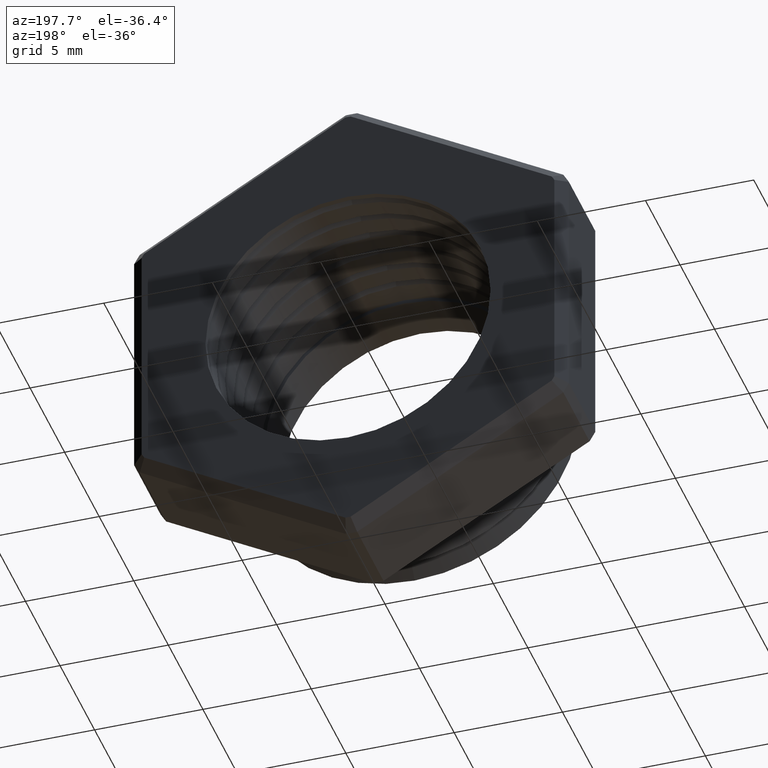
[diagram: clean part render]
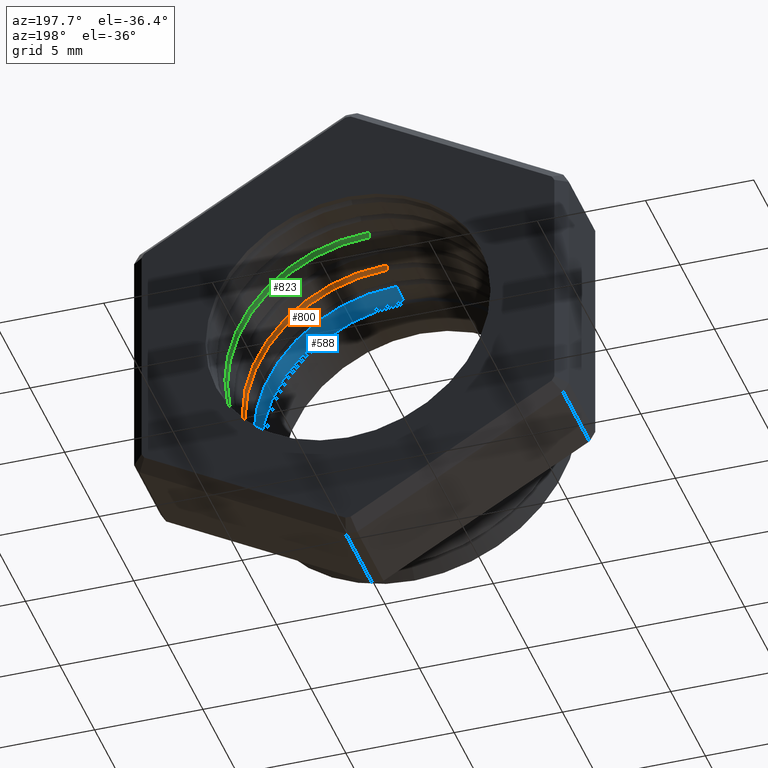
[diagram: same view with three faces highlighted in distinct colors, each labeled with its STEP entity id]
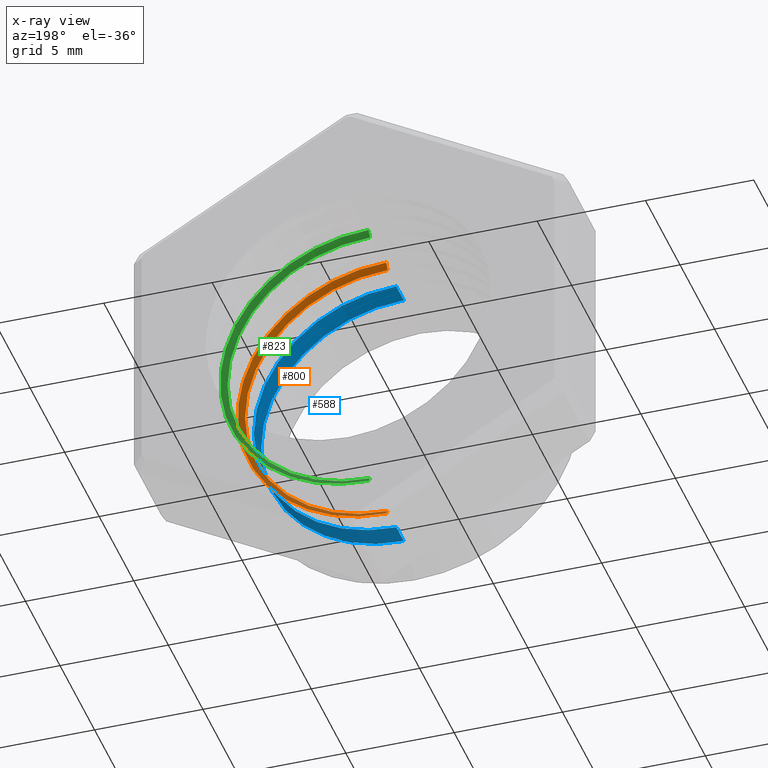
[diagram: x-ray of the same camera — body ghosted, the three highlighted faces saturated]
A machine part, auxiliary view with three faces highlighted in distinct colors.
The next image is the same camera in x-ray (body ghosted, the three faces saturated) — at least one of them is partly hidden behind the body in this view.
Their STEP definitions:

[orange] entity #800 — the highlighted conical surface has half-angle 55 deg.
#112 = EDGE_CURVE ( 'NONE', #115, #183, #1031, .T. ) ;
#114 = VERTEX_POINT ( 'NONE', #1022 ) ;
#115 = VERTEX_POINT ( 'NONE', #1021 ) ;
#168 = EDGE_CURVE ( 'NONE', #114, #186, #1115, .T. ) ;
#183 = VERTEX_POINT ( 'NONE', #1147 ) ;
#186 = VERTEX_POINT ( 'NONE', #1205 ) ;
#237 = EDGE_CURVE ( 'NONE', #114, #115, #1297, .T. ) ;
#799 = EDGE_CURVE ( 'NONE', #183, #186, #2266, .T. ) ;
#800 = ADVANCED_FACE ( 'NONE', ( #2267 ), #2259, .F. ) ;
#801 = EDGE_LOOP ( 'NONE', ( #802, #803, #804, #805 ) ) ;
#802 = ORIENTED_EDGE ( 'NONE', *, *, #168, .F. ) ;
#803 = ORIENTED_EDGE ( 'NONE', *, *, #237, .T. ) ;
#804 = ORIENTED_EDGE ( 'NONE', *, *, #112, .T. ) ;
#805 = ORIENTED_EDGE ( 'NONE', *, *, #799, .T. ) ;
#1021 = CARTESIAN_POINT ( 'NONE',  ( 3.171688816986526800E-017, 0.1823501481262192200, 0.2589880461203001900 ) ) ;
#1022 = CARTESIAN_POINT ( 'NONE',  ( 0.0000000000000000000, 0.1823501481262192200, -0.2589880461203001900 ) ) ;
#1028 = DIRECTION ( 'NONE',  ( 0.0000000000000000000, 0.5735764363510433800, 0.8191520442889936900 ) ) ;
#1029 = VECTOR ( 'NONE', #1028, 39.37007874015748100 ) ;
#1030 = CARTESIAN_POINT ( 'NONE',  ( 0.0000000000000000000, 0.1899999999999996400, 0.2699131668257122000 ) ) ;
#1031 = LINE ( 'NONE', #1030, #1029 ) ;
#1114 = CARTESIAN_POINT ( 'NONE',  ( 3.305482958008340100E-017, 0.1899999999999996400, -0.2699131668257122000 ) ) ;
#1115 = LINE ( 'NONE', #1114, #1176 ) ;
#1147 = CARTESIAN_POINT ( 'NONE',  ( 3.305482958008340100E-017, 0.1899999999999996400, 0.2699131668257122000 ) ) ;
#1175 = DIRECTION ( 'NONE',  ( 1.003171929053527100E-016, 0.5735764363510433800, -0.8191520442889936900 ) ) ;
#1176 = VECTOR ( 'NONE', #1175, 39.37007874015748100 ) ;
#1205 = CARTESIAN_POINT ( 'NONE',  ( 0.0000000000000000000, 0.1899999999999996400, -0.2699131668257122000 ) ) ;
#1289 = DIRECTION ( 'NONE',  ( 0.0000000000000000000, 0.0000000000000000000, 1.000000000000000000 ) ) ;
#1290 = DIRECTION ( 'NONE',  ( 0.0000000000000000000, -1.000000000000000000, 0.0000000000000000000 ) ) ;
#1291 = CARTESIAN_POINT ( 'NONE',  ( 0.0000000000000000000, 0.1823501481262192200, 0.0000000000000000000 ) ) ;
#1292 = AXIS2_PLACEMENT_3D ( 'NONE', #1291, #1290, #1289 ) ;
#1297 = CIRCLE ( 'NONE', #1292, 0.2589880461203001900 ) ;
#2256 = DIRECTION ( 'NONE',  ( 0.0000000000000000000, 0.0000000000000000000, 1.000000000000000000 ) ) ;
#2257 = DIRECTION ( 'NONE',  ( -0.0000000000000000000, 1.000000000000000000, -0.0000000000000000000 ) ) ;
#2258 = AXIS2_PLACEMENT_3D ( 'NONE', #2261, #2257, #2256 ) ;
#2259 = CONICAL_SURFACE ( 'NONE', #2258, 0.2699131668257122000, 0.9599310885968845900 ) ;
#2261 = CARTESIAN_POINT ( 'NONE',  ( 0.0000000000000000000, 0.1899999999999996400, 0.0000000000000000000 ) ) ;
#2262 = DIRECTION ( 'NONE',  ( 0.0000000000000000000, 0.0000000000000000000, 1.000000000000000000 ) ) ;
#2263 = DIRECTION ( 'NONE',  ( -0.0000000000000000000, 1.000000000000000000, -0.0000000000000000000 ) ) ;
#2264 = CARTESIAN_POINT ( 'NONE',  ( 0.0000000000000000000, 0.1899999999999996400, 0.0000000000000000000 ) ) ;
#2265 = AXIS2_PLACEMENT_3D ( 'NONE', #2264, #2263, #2262 ) ;
#2266 = CIRCLE ( 'NONE', #2265, 0.2699131668257122000 ) ;
#2267 = FACE_OUTER_BOUND ( 'NONE', #801, .T. ) ;

[blue] entity #588 — the highlighted cylindrical surface (partial cylindrical patch) has radius 6.5783 mm, axis along (-0, -1, -0).
#77 = EDGE_CURVE ( 'NONE', #221, #94, #962, .T. ) ;
#94 = VERTEX_POINT ( 'NONE', #995 ) ;
#220 = VERTEX_POINT ( 'NONE', #1260 ) ;
#221 = VERTEX_POINT ( 'NONE', #1259 ) ;
#567 = EDGE_CURVE ( 'NONE', #221, #220, #1898, .T. ) ;
#568 = ORIENTED_EDGE ( 'NONE', *, *, #77, .T. ) ;
#569 = ORIENTED_EDGE ( 'NONE', *, *, #570, .T. ) ;
#570 = EDGE_CURVE ( 'NONE', #94, #856, #1957, .T. ) ;
#588 = ADVANCED_FACE ( 'NONE', ( #1928 ), #1927, .F. ) ;
#589 = EDGE_LOOP ( 'NONE', ( #590, #591, #568, #569 ) ) ;
#590 = ORIENTED_EDGE ( 'NONE', *, *, #855, .F. ) ;
#591 = ORIENTED_EDGE ( 'NONE', *, *, #567, .F. ) ;
#855 = EDGE_CURVE ( 'NONE', #220, #856, #2279, .T. ) ;
#856 = VERTEX_POINT ( 'NONE', #2275 ) ;
#959 = DIRECTION ( 'NONE',  ( -0.0000000000000000000, -1.000000000000000000, -0.0000000000000000000 ) ) ;
#960 = VECTOR ( 'NONE', #959, 39.37007874015748100 ) ;
#961 = CARTESIAN_POINT ( 'NONE',  ( 0.0000000000000000000, 0.0000000000000000000, -0.2589880461203001900 ) ) ;
#962 = LINE ( 'NONE', #961, #960 ) ;
#995 = CARTESIAN_POINT ( 'NONE',  ( 0.0000000000000000000, 0.09004055792435219900, -0.2589880461203001900 ) ) ;
#1259 = CARTESIAN_POINT ( 'NONE',  ( 0.0000000000000000000, 0.1323501481262192300, -0.2589880461203001900 ) ) ;
#1260 = CARTESIAN_POINT ( 'NONE',  ( 3.171688816986526800E-017, 0.1323501481262192300, 0.2589880461203001900 ) ) ;
#1894 = DIRECTION ( 'NONE',  ( 0.0000000000000000000, 0.0000000000000000000, 1.000000000000000000 ) ) ;
#1895 = DIRECTION ( 'NONE',  ( 0.0000000000000000000, -1.000000000000000000, 0.0000000000000000000 ) ) ;
#1896 = CARTESIAN_POINT ( 'NONE',  ( 0.0000000000000000000, 0.1323501481262192300, 0.0000000000000000000 ) ) ;
#1897 = AXIS2_PLACEMENT_3D ( 'NONE', #1896, #1895, #1894 ) ;
#1898 = CIRCLE ( 'NONE', #1897, 0.2589880461203001900 ) ;
#1925 = CARTESIAN_POINT ( 'NONE',  ( 0.0000000000000000000, 0.0000000000000000000, 0.0000000000000000000 ) ) ;
#1926 = AXIS2_PLACEMENT_3D ( 'NONE', #1925, #1987, #1986 ) ;
#1927 = CYLINDRICAL_SURFACE ( 'NONE', #1926, 0.2589880461203001900 ) ;
#1928 = FACE_OUTER_BOUND ( 'NONE', #589, .T. ) ;
#1953 = DIRECTION ( 'NONE',  ( 0.0000000000000000000, 0.0000000000000000000, -1.000000000000000000 ) ) ;
#1954 = DIRECTION ( 'NONE',  ( -0.0000000000000000000, -1.000000000000000000, -0.0000000000000000000 ) ) ;
#1955 = CARTESIAN_POINT ( 'NONE',  ( 0.0000000000000000000, 0.09004055792435219900, 0.0000000000000000000 ) ) ;
#1956 = AXIS2_PLACEMENT_3D ( 'NONE', #1955, #1954, #1953 ) ;
#1957 = CIRCLE ( 'NONE', #1956, 0.2589880461203001900 ) ;
#1986 = DIRECTION ( 'NONE',  ( 0.0000000000000000000, 0.0000000000000000000, -1.000000000000000000 ) ) ;
#1987 = DIRECTION ( 'NONE',  ( -0.0000000000000000000, -1.000000000000000000, -0.0000000000000000000 ) ) ;
#2275 = CARTESIAN_POINT ( 'NONE',  ( 3.171688816986526800E-017, 0.09004055792435219900, 0.2589880461203001900 ) ) ;
#2276 = DIRECTION ( 'NONE',  ( -0.0000000000000000000, -1.000000000000000000, -0.0000000000000000000 ) ) ;
#2277 = VECTOR ( 'NONE', #2276, 39.37007874015748100 ) ;
#2278 = CARTESIAN_POINT ( 'NONE',  ( 3.171688816986526800E-017, 0.0000000000000000000, 0.2589880461203001900 ) ) ;
#2279 = LINE ( 'NONE', #2278, #2277 ) ;

[green] entity #823 — the highlighted conical surface has half-angle 55 deg.
#306 = EDGE_CURVE ( 'NONE', #325, #324, #1400, .T. ) ;
#324 = VERTEX_POINT ( 'NONE', #1484 ) ;
#325 = VERTEX_POINT ( 'NONE', #1483 ) ;
#327 = EDGE_CURVE ( 'NONE', #325, #328, #1482, .T. ) ;
#328 = VERTEX_POINT ( 'NONE', #1478 ) ;
#331 = VERTEX_POINT ( 'NONE', #1472 ) ;
#333 = EDGE_CURVE ( 'NONE', #324, #331, #1471, .T. ) ;
#767 = EDGE_CURVE ( 'NONE', #331, #328, #2184, .T. ) ;
#768 = EDGE_LOOP ( 'NONE', ( #824, #825, #826, #827 ) ) ;
#823 = ADVANCED_FACE ( 'NONE', ( #2298 ), #2295, .F. ) ;
#824 = ORIENTED_EDGE ( 'NONE', *, *, #327, .F. ) ;
#825 = ORIENTED_EDGE ( 'NONE', *, *, #306, .T. ) ;
#826 = ORIENTED_EDGE ( 'NONE', *, *, #333, .T. ) ;
#827 = ORIENTED_EDGE ( 'NONE', *, *, #767, .T. ) ;
#900 = DIRECTION ( 'NONE',  ( 0.0000000000000000000, 0.0000000000000000000, 1.000000000000000000 ) ) ;
#901 = DIRECTION ( 'NONE',  ( 0.0000000000000000000, -1.000000000000000000, 0.0000000000000000000 ) ) ;
#1393 = CARTESIAN_POINT ( 'NONE',  ( 0.0000000000000000000, 0.2823501481262192200, 0.0000000000000000000 ) ) ;
#1394 = AXIS2_PLACEMENT_3D ( 'NONE', #1393, #901, #900 ) ;
#1400 = CIRCLE ( 'NONE', #1394, 0.2589880461203001900 ) ;
#1468 = DIRECTION ( 'NONE',  ( 0.0000000000000000000, 0.5735764363510433800, 0.8191520442889936900 ) ) ;
#1469 = VECTOR ( 'NONE', #1468, 39.37007874015748100 ) ;
#1470 = CARTESIAN_POINT ( 'NONE',  ( 0.0000000000000000000, 0.2899999999999996500, 0.2699131668257122000 ) ) ;
#1471 = LINE ( 'NONE', #1470, #1469 ) ;
#1472 = CARTESIAN_POINT ( 'NONE',  ( 3.305482958008340100E-017, 0.2899999999999996500, 0.2699131668257122000 ) ) ;
#1478 = CARTESIAN_POINT ( 'NONE',  ( 0.0000000000000000000, 0.2899999999999996500, -0.2699131668257122000 ) ) ;
#1479 = DIRECTION ( 'NONE',  ( 1.003171929053527100E-016, 0.5735764363510433800, -0.8191520442889936900 ) ) ;
#1480 = VECTOR ( 'NONE', #1479, 39.37007874015748100 ) ;
#1481 = CARTESIAN_POINT ( 'NONE',  ( 3.305482958008340100E-017, 0.2899999999999996500, -0.2699131668257122000 ) ) ;
#1482 = LINE ( 'NONE', #1481, #1480 ) ;
#1483 = CARTESIAN_POINT ( 'NONE',  ( 0.0000000000000000000, 0.2823501481262192200, -0.2589880461203001900 ) ) ;
#1484 = CARTESIAN_POINT ( 'NONE',  ( 3.171688816986526800E-017, 0.2823501481262192200, 0.2589880461203001900 ) ) ;
#2180 = DIRECTION ( 'NONE',  ( 0.0000000000000000000, 0.0000000000000000000, 1.000000000000000000 ) ) ;
#2181 = DIRECTION ( 'NONE',  ( -0.0000000000000000000, 1.000000000000000000, -0.0000000000000000000 ) ) ;
#2182 = CARTESIAN_POINT ( 'NONE',  ( 0.0000000000000000000, 0.2899999999999996500, 0.0000000000000000000 ) ) ;
#2183 = AXIS2_PLACEMENT_3D ( 'NONE', #2182, #2181, #2180 ) ;
#2184 = CIRCLE ( 'NONE', #2183, 0.2699131668257122000 ) ;
#2290 = DIRECTION ( 'NONE',  ( 0.0000000000000000000, 0.0000000000000000000, 1.000000000000000000 ) ) ;
#2291 = DIRECTION ( 'NONE',  ( -0.0000000000000000000, 1.000000000000000000, -0.0000000000000000000 ) ) ;
#2292 = CARTESIAN_POINT ( 'NONE',  ( 0.0000000000000000000, 0.2899999999999996500, 0.0000000000000000000 ) ) ;
#2293 = AXIS2_PLACEMENT_3D ( 'NONE', #2292, #2291, #2290 ) ;
#2295 = CONICAL_SURFACE ( 'NONE', #2293, 0.2699131668257122000, 0.9599310885968845900 ) ;
#2298 = FACE_OUTER_BOUND ( 'NONE', #768, .T. ) ;